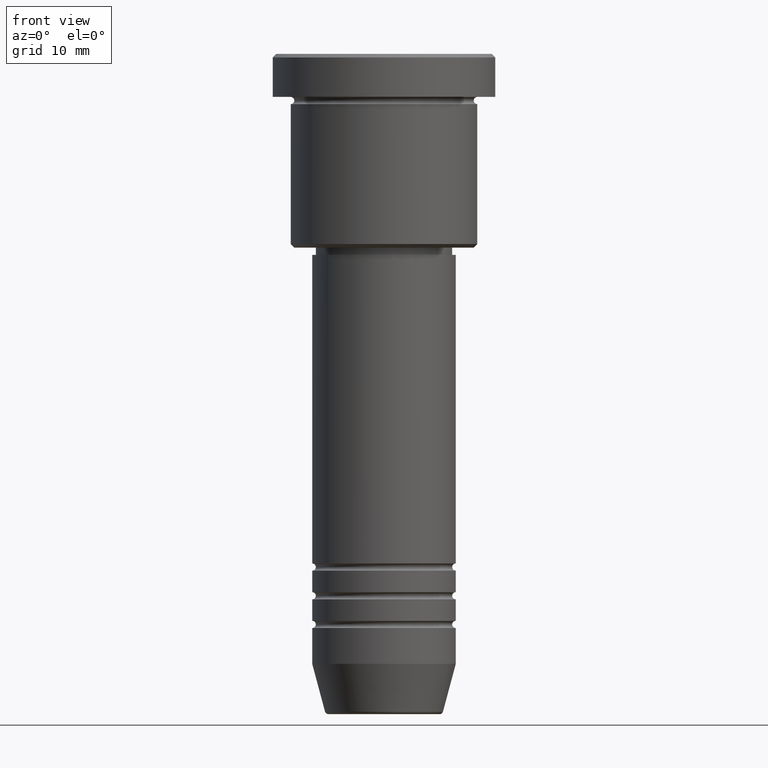
[diagram: clean part render]
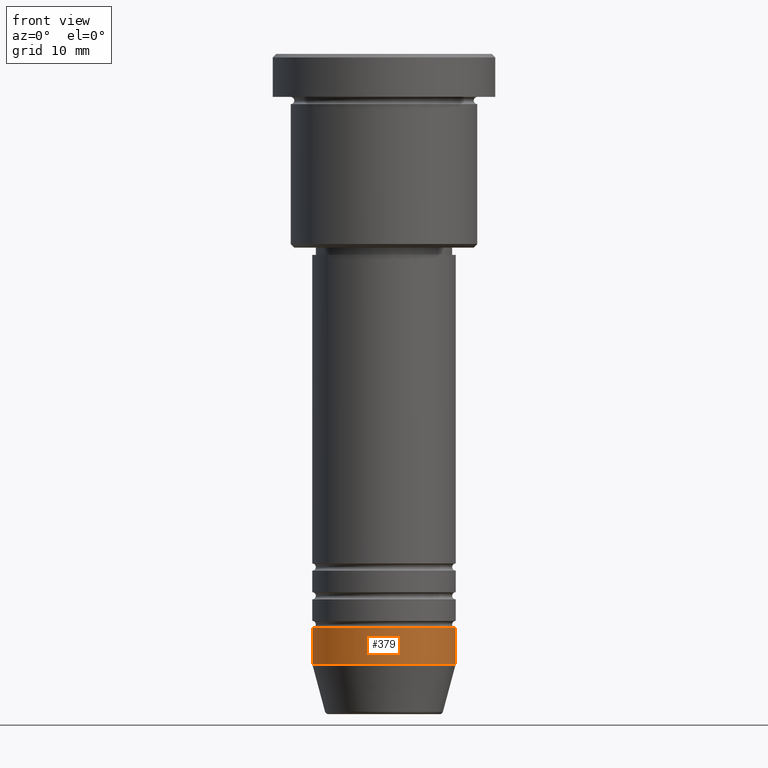
[diagram: same view with one face highlighted and labeled with its STEP entity id]
A machine part, front view. The second image highlights one B-rep face of the part: STEP entity #379.
In plain terms, the highlighted cylindrical surface (partial cylindrical patch) has radius 10 mm, axis along (-0, -0, 1).
Its self-contained STEP definition (entity closure, byte-faithful):
#24 = CARTESIAN_POINT ( 'NONE',  ( 10.00000000000000000, 0.000000000000000000, 0.000000000000000000 ) ) ;
#30 = DIRECTION ( 'NONE',  ( -0.000000000000000000, -0.000000000000000000, 1.000000000000000000 ) ) ;
#89 = CIRCLE ( 'NONE', #746, 10.00000000000000000 ) ;
#100 = CARTESIAN_POINT ( 'NONE',  ( -10.00000000000000000, 1.224646799147353256E-15, 0.000000000000000000 ) ) ;
#147 = VERTEX_POINT ( 'NONE', #1119 ) ;
#230 = AXIS2_PLACEMENT_3D ( 'NONE', #863, #1148, #687 ) ;
#304 = VECTOR ( 'NONE', #550, 1000.000000000000000 ) ;
#343 = CARTESIAN_POINT ( 'NONE',  ( 10.00000000000000000, 0.000000000000000000, -80.00000000000001421 ) ) ;
#379 = ADVANCED_FACE ( 'NONE', ( #885 ), #1074, .T. ) ;
#500 = EDGE_CURVE ( 'NONE', #979, #868, #89, .T. ) ;
#538 = DIRECTION ( 'NONE',  ( -0.000000000000000000, -0.000000000000000000, 1.000000000000000000 ) ) ;
#550 = DIRECTION ( 'NONE',  ( -0.000000000000000000, -0.000000000000000000, 1.000000000000000000 ) ) ;
#554 = ORIENTED_EDGE ( 'NONE', *, *, #1121, .T. ) ;
#568 = LINE ( 'NONE', #100, #755 ) ;
#609 = DIRECTION ( 'NONE',  ( -0.000000000000000000, -0.000000000000000000, 1.000000000000000000 ) ) ;
#631 = ORIENTED_EDGE ( 'NONE', *, *, #1137, .F. ) ;
#643 = CIRCLE ( 'NONE', #230, 10.00000000000000000 ) ;
#653 = CARTESIAN_POINT ( 'NONE',  ( -10.00000000000000000, 1.224646799147353256E-15, -80.00000000000001421 ) ) ;
#687 = DIRECTION ( 'NONE',  ( 1.000000000000000000, 0.000000000000000000, 0.000000000000000000 ) ) ;
#744 = LINE ( 'NONE', #24, #304 ) ;
#746 = AXIS2_PLACEMENT_3D ( 'NONE', #1083, #538, #1095 ) ;
#755 = VECTOR ( 'NONE', #30, 1000.000000000000000 ) ;
#765 = CARTESIAN_POINT ( 'NONE',  ( 0.000000000000000000, 0.000000000000000000, 0.000000000000000000 ) ) ;
#787 = AXIS2_PLACEMENT_3D ( 'NONE', #765, #609, #894 ) ;
#863 = CARTESIAN_POINT ( 'NONE',  ( 0.000000000000000000, 0.000000000000000000, -85.00000000000000000 ) ) ;
#868 = VERTEX_POINT ( 'NONE', #343 ) ;
#885 = FACE_OUTER_BOUND ( 'NONE', #1178, .T. ) ;
#894 = DIRECTION ( 'NONE',  ( 1.000000000000000000, 0.000000000000000000, 0.000000000000000000 ) ) ;
#979 = VERTEX_POINT ( 'NONE', #653 ) ;
#1000 = ORIENTED_EDGE ( 'NONE', *, *, #1174, .T. ) ;
#1020 = ORIENTED_EDGE ( 'NONE', *, *, #500, .F. ) ;
#1036 = CARTESIAN_POINT ( 'NONE',  ( -10.00000000000000000, 1.224646799147353256E-15, -85.00000000000000000 ) ) ;
#1074 = CYLINDRICAL_SURFACE ( 'NONE', #787, 10.00000000000000000 ) ;
#1083 = CARTESIAN_POINT ( 'NONE',  ( 0.000000000000000000, 0.000000000000000000, -80.00000000000001421 ) ) ;
#1095 = DIRECTION ( 'NONE',  ( 1.000000000000000000, 0.000000000000000000, 0.000000000000000000 ) ) ;
#1119 = CARTESIAN_POINT ( 'NONE',  ( 10.00000000000000000, 0.000000000000000000, -85.00000000000000000 ) ) ;
#1120 = VERTEX_POINT ( 'NONE', #1036 ) ;
#1121 = EDGE_CURVE ( 'NONE', #147, #868, #744, .T. ) ;
#1137 = EDGE_CURVE ( 'NONE', #1120, #979, #568, .T. ) ;
#1148 = DIRECTION ( 'NONE',  ( -0.000000000000000000, -0.000000000000000000, 1.000000000000000000 ) ) ;
#1174 = EDGE_CURVE ( 'NONE', #1120, #147, #643, .T. ) ;
#1178 = EDGE_LOOP ( 'NONE', ( #631, #1000, #554, #1020 ) ) ;